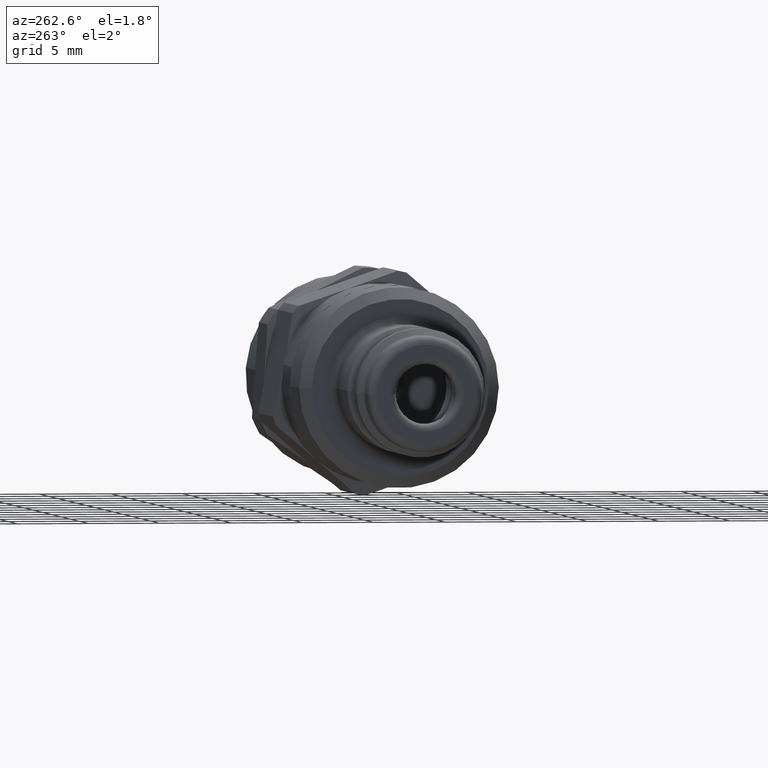
[diagram: clean part render]
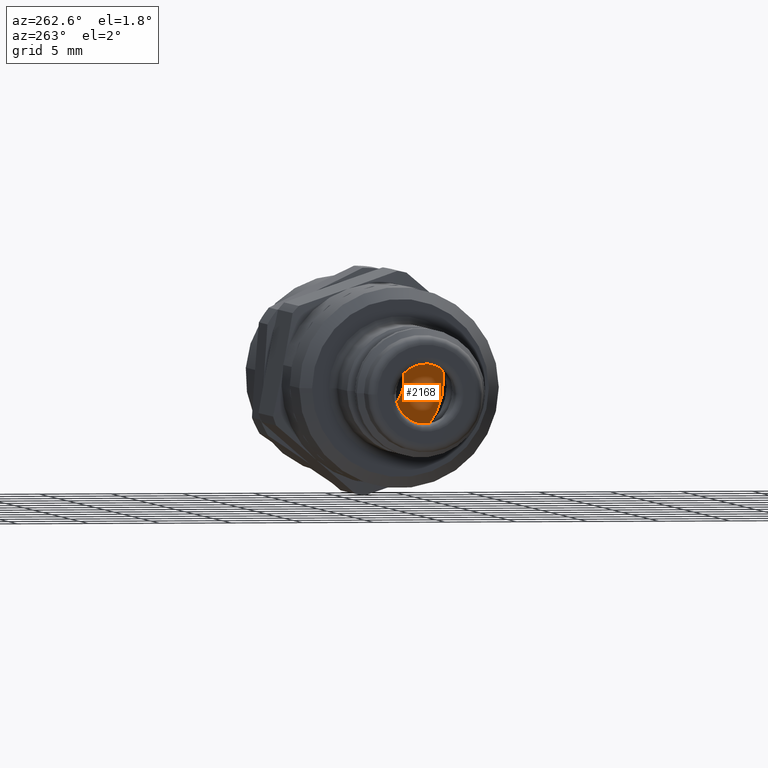
[diagram: same view with one face highlighted and labeled with its STEP entity id]
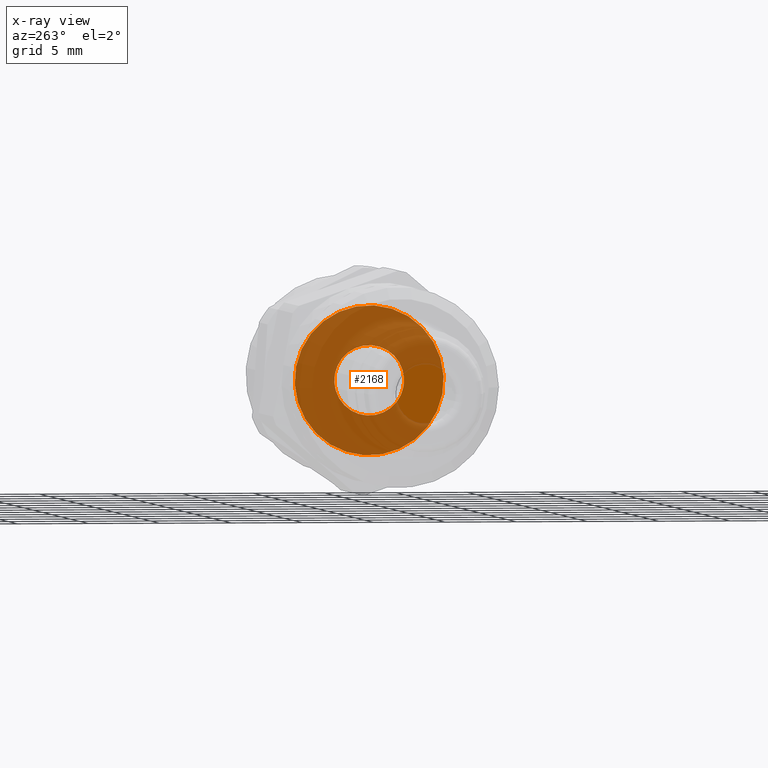
[diagram: x-ray of the same camera — body ghosted, the highlighted face saturated]
A machine part, auxiliary view. The second image highlights one B-rep face of the part: STEP entity #2168.
The next image is the same camera in x-ray: the body ghosted, the highlighted face saturated — about 85% of this face is hidden behind the body in this view.
In plain terms, the highlighted planar face has unit normal (-1, 0, 0).
Its self-contained STEP definition (entity closure, byte-faithful):
#2134=CARTESIAN_POINT('',(15.0,5.225,0.0));
#2135=VERTEX_POINT('',#2134);
#2136=CARTESIAN_POINT('',(15.0,0.0,0.0));
#2137=DIRECTION('',(1.0,0.0,0.0));
#2138=DIRECTION('',(0.0,1.0,0.0));
#2139=AXIS2_PLACEMENT_3D('',#2136,#2137,#2138);
#2140=CIRCLE('',#2139,5.225);
#2141=EDGE_CURVE('',#2135,#2135,#2140,.T.);
#2149=CARTESIAN_POINT('',(15.0,3.8375,0.0));
#2150=DIRECTION('',(1.0,0.0,0.0));
#2151=DIRECTION('',(0.0,0.0,-1.0));
#2152=AXIS2_PLACEMENT_3D('',#2149,#2150,#2151);
#2153=PLANE('',#2152);
#2154=ORIENTED_EDGE('',*,*,#2141,.T.);
#2155=EDGE_LOOP('',(#2154));
#2156=FACE_OUTER_BOUND('',#2155,.T.);
#2157=CARTESIAN_POINT('',(15.0,2.450000000000001,0.0));
#2158=VERTEX_POINT('',#2157);
#2159=CARTESIAN_POINT('',(15.0,0.0,0.0));
#2160=DIRECTION('',(1.0,0.0,0.0));
#2161=DIRECTION('',(0.0,1.0,0.0));
#2162=AXIS2_PLACEMENT_3D('',#2159,#2160,#2161);
#2163=CIRCLE('',#2162,2.450000000000001);
#2164=EDGE_CURVE('',#2158,#2158,#2163,.T.);
#2165=ORIENTED_EDGE('',*,*,#2164,.F.);
#2166=EDGE_LOOP('',(#2165));
#2167=FACE_BOUND('',#2166,.T.);
#2168=ADVANCED_FACE('',(#2156,#2167),#2153,.T.);